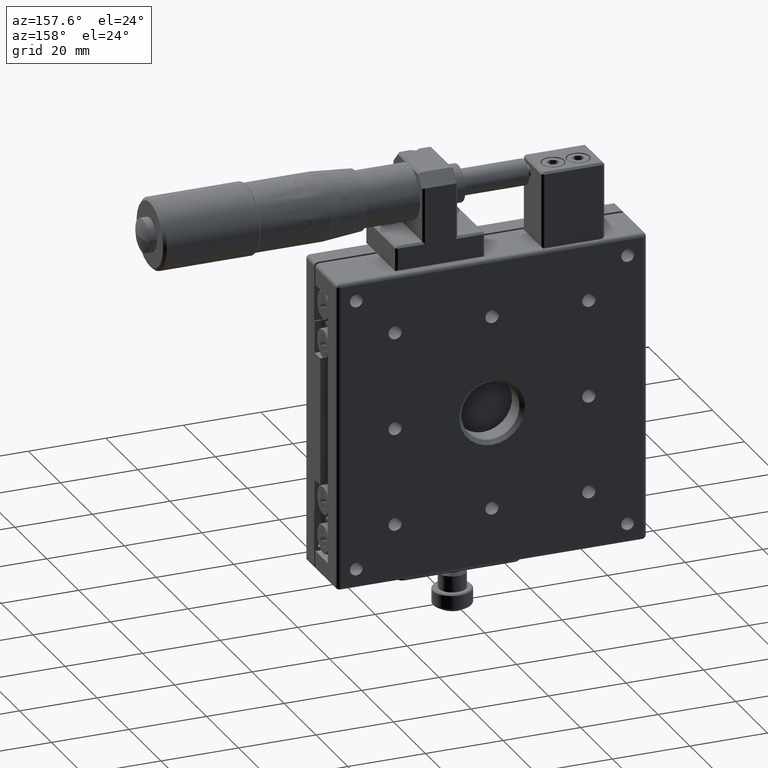
[diagram: clean part render]
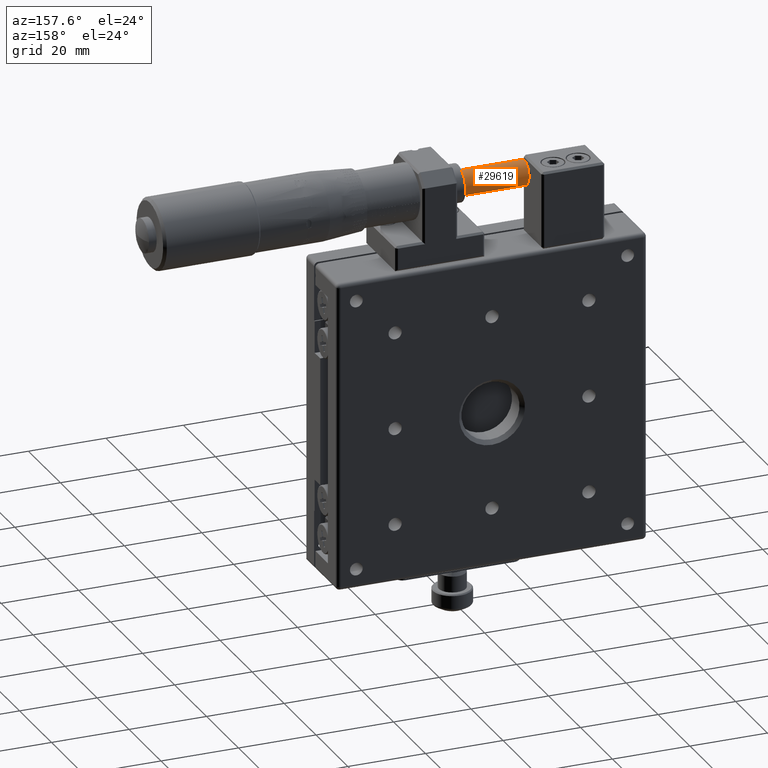
[diagram: same view with one face highlighted and labeled with its STEP entity id]
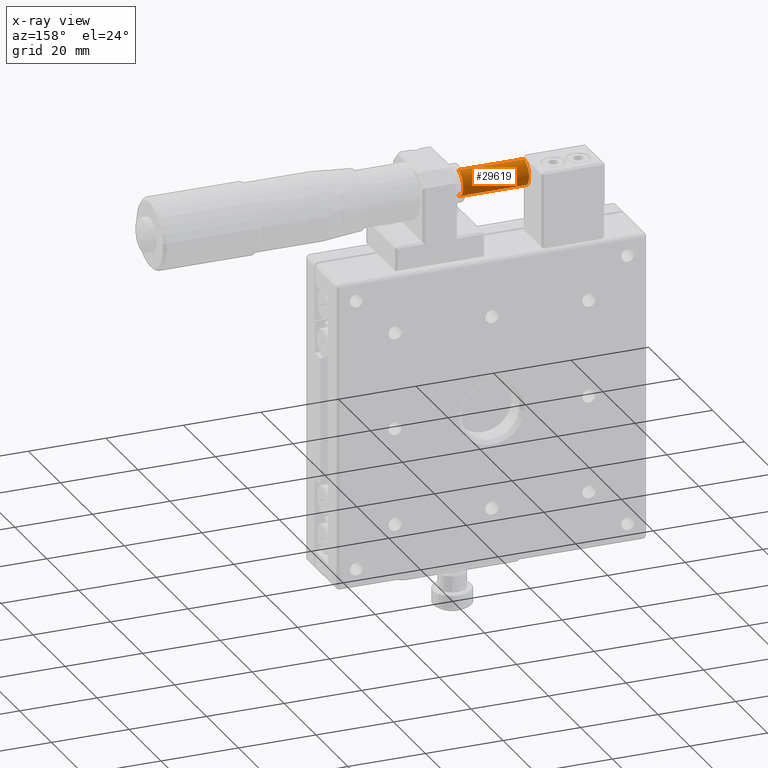
[diagram: x-ray of the same camera — body ghosted, the highlighted face saturated]
A machine part, auxiliary view. The second image highlights one B-rep face of the part: STEP entity #29619.
The next image is the same camera in x-ray: the body ghosted, the highlighted face saturated — about 0% of this face is hidden behind the body in this view.
In plain terms, the highlighted cylindrical surface (edge-blend (fillet) strip) has radius 3.25 mm, axis along (1, 0, 0).
Its self-contained STEP definition (entity closure, byte-faithful):
#915 = DIRECTION ( 'NONE',  ( 1.000000000000000000, 0.000000000000000000, 0.000000000000000000 ) ) ;
#1212 = VECTOR ( 'NONE', #58567, 1000.000000000000000 ) ;
#1821 = ORIENTED_EDGE ( 'NONE', *, *, #61288, .T. ) ;
#3674 = EDGE_CURVE ( 'NONE', #31734, #57848, #16558, .T. ) ;
#6395 = CARTESIAN_POINT ( 'NONE',  ( 82.80988274706869845, 4.039949748743705271, 53.75000000000000000 ) ) ;
#6430 = CARTESIAN_POINT ( 'NONE',  ( 0.3098827470686819630, 4.039949748743705271, 60.25000000000000000 ) ) ;
#11475 = DIRECTION ( 'NONE',  ( 1.000000000000000000, 0.000000000000000000, 0.000000000000000000 ) ) ;
#14500 = CARTESIAN_POINT ( 'NONE',  ( 0.3098827470686819630, 4.039949748743705271, 57.00000000000000000 ) ) ;
#16132 = CIRCLE ( 'NONE', #38866, 3.250000000000002665 ) ;
#16558 = LINE ( 'NONE', #37583, #17931 ) ;
#16599 = AXIS2_PLACEMENT_3D ( 'NONE', #46004, #915, #31441 ) ;
#17931 = VECTOR ( 'NONE', #11475, 1000.000000000000000 ) ;
#18254 = DIRECTION ( 'NONE',  ( 0.000000000000000000, 0.000000000000000000, -1.000000000000000000 ) ) ;
#19074 = VERTEX_POINT ( 'NONE', #64249 ) ;
#22043 = DIRECTION ( 'NONE',  ( 1.000000000000000000, 0.000000000000000000, 0.000000000000000000 ) ) ;
#26197 = EDGE_CURVE ( 'NONE', #19074, #57848, #53748, .T. ) ;
#29619 = ADVANCED_FACE ( 'NONE', ( #41916 ), #52115, .T. ) ;
#31141 = EDGE_LOOP ( 'NONE', ( #1821, #49186, #33168, #56119 ) ) ;
#31441 = DIRECTION ( 'NONE',  ( 0.000000000000000000, 0.000000000000000000, -1.000000000000000000 ) ) ;
#31501 = LINE ( 'NONE', #6395, #1212 ) ;
#31734 = VERTEX_POINT ( 'NONE', #49359 ) ;
#33168 = ORIENTED_EDGE ( 'NONE', *, *, #26197, .F. ) ;
#36996 = CARTESIAN_POINT ( 'NONE',  ( -16.69011725293130155, 4.039949748743705271, 57.00000000000000000 ) ) ;
#37583 = CARTESIAN_POINT ( 'NONE',  ( 82.80988274706869845, 4.039949748743705271, 60.25000000000000000 ) ) ;
#38866 = AXIS2_PLACEMENT_3D ( 'NONE', #36996, #22043, #47837 ) ;
#41916 = FACE_OUTER_BOUND ( 'NONE', #31141, .T. ) ;
#46004 = CARTESIAN_POINT ( 'NONE',  ( 82.80988274706869845, 4.039949748743705271, 57.00000000000000000 ) ) ;
#47837 = DIRECTION ( 'NONE',  ( 0.000000000000000000, 0.000000000000000000, -1.000000000000000000 ) ) ;
#48338 = AXIS2_PLACEMENT_3D ( 'NONE', #14500, #65373, #18254 ) ;
#49186 = ORIENTED_EDGE ( 'NONE', *, *, #3674, .T. ) ;
#49359 = CARTESIAN_POINT ( 'NONE',  ( -16.69011725293130155, 4.039949748743705271, 60.25000000000000000 ) ) ;
#50024 = VERTEX_POINT ( 'NONE', #59709 ) ;
#52115 = CYLINDRICAL_SURFACE ( 'NONE', #16599, 3.250000000000002665 ) ;
#53748 = CIRCLE ( 'NONE', #48338, 3.250000000000002665 ) ;
#56119 = ORIENTED_EDGE ( 'NONE', *, *, #64531, .F. ) ;
#57848 = VERTEX_POINT ( 'NONE', #6430 ) ;
#58567 = DIRECTION ( 'NONE',  ( 1.000000000000000000, 0.000000000000000000, 0.000000000000000000 ) ) ;
#59709 = CARTESIAN_POINT ( 'NONE',  ( -16.69011725293130155, 4.039949748743705271, 53.75000000000000000 ) ) ;
#61288 = EDGE_CURVE ( 'NONE', #50024, #31734, #16132, .T. ) ;
#64249 = CARTESIAN_POINT ( 'NONE',  ( 0.3098827470686819630, 4.039949748743705271, 53.75000000000000000 ) ) ;
#64531 = EDGE_CURVE ( 'NONE', #50024, #19074, #31501, .T. ) ;
#65373 = DIRECTION ( 'NONE',  ( 1.000000000000000000, 0.000000000000000000, 0.000000000000000000 ) ) ;